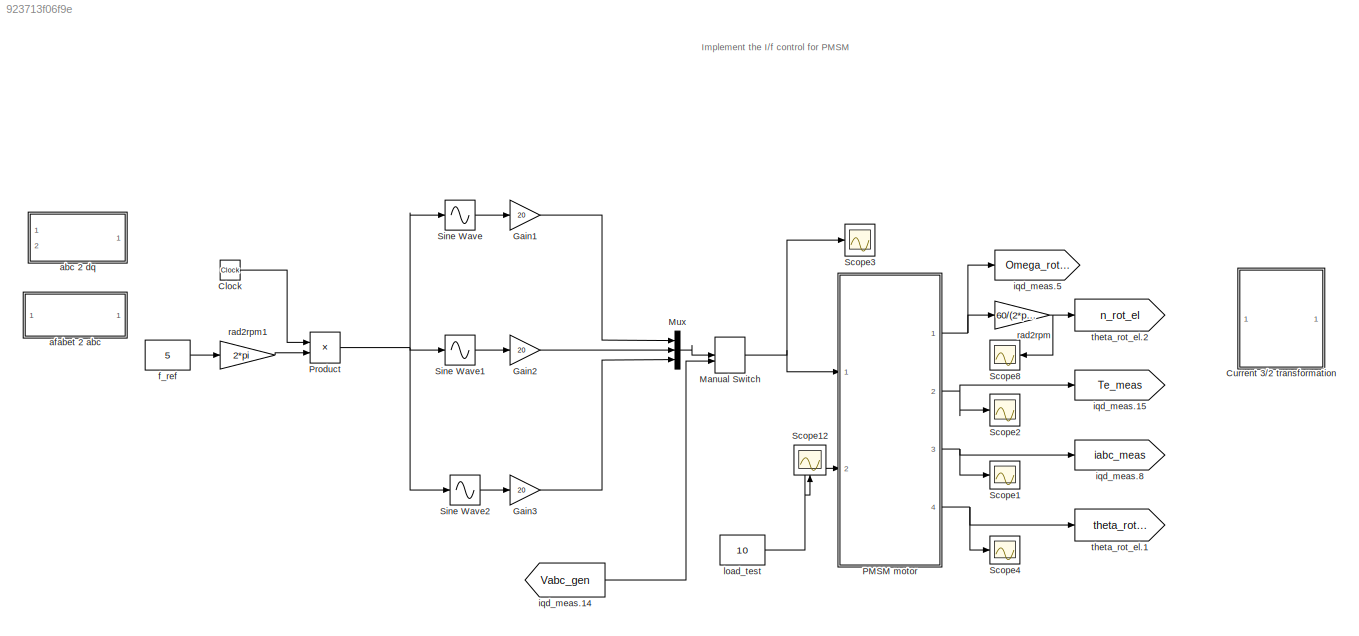
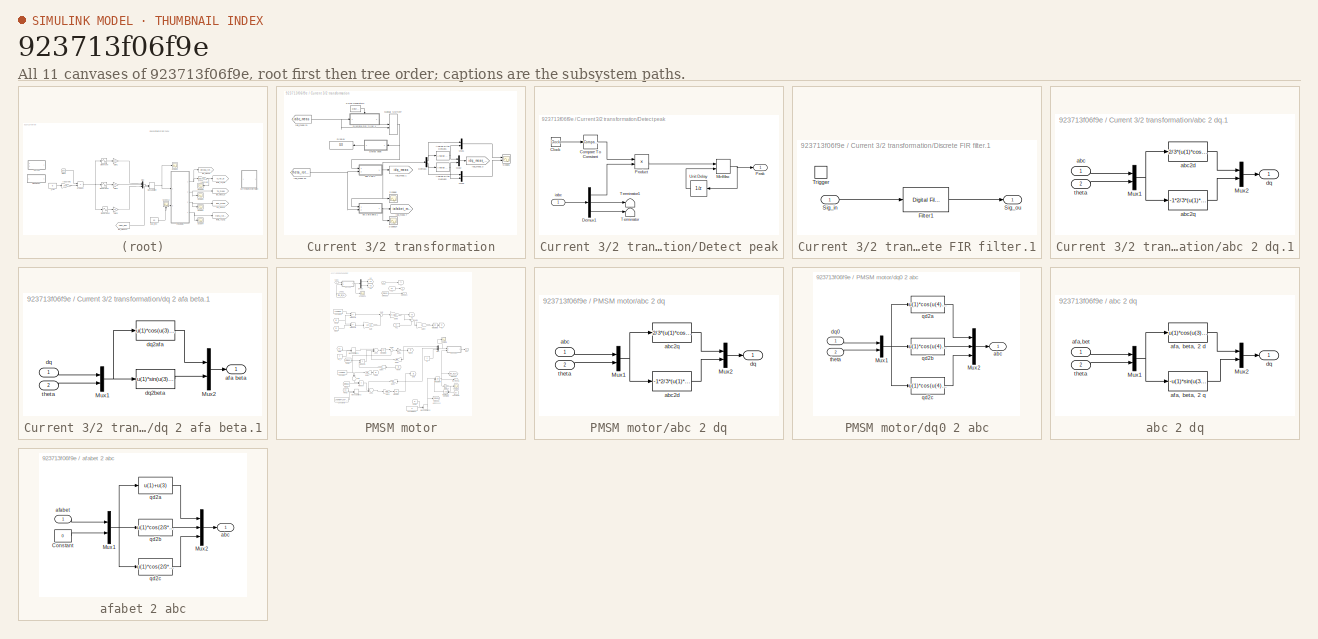
[diagram: thumbnail index - all 11 canvases of the model, root first then tree order]
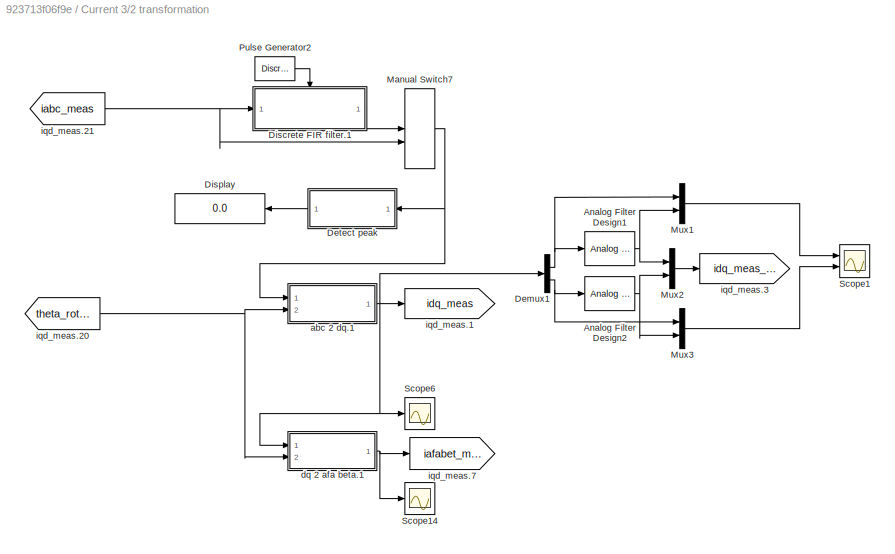
MODEL slx_923713f06f9e
KIND model
CONFIG InitFcn = Motor_parameters_Lsrpm7fw
BLOCK [Clock] Clock
BLOCK [SubSystem] Current 3//2 transformation
  FunctionWithSeparateData = off
  MaskHideContents = off
  MinAlgLoopOccurrences = off
  Opaque = off
  Ports = []
  PropExecContextOutsideSubsystem = off
  RTWSystemCode = Auto
  RequestExecContextInheritance = off
BLOCK [Reference] Current 3//2 transformation/Analog Filter Design1  REF=dsparch4/Analog
Filter Design
  N = 5
  Ports = [1, 1]
  Rp = 2
  Rs = 40
  SourceBlock = dsparch4/Analog\nFilter Design
  SourceType = Analog Filter Design
  Whi = 80
  Wlo = 2*pi*400
  filttype = Lowpass
  method = Butterworth
BLOCK [Reference] Current 3//2 transformation/Analog Filter Design2  REF=dsparch4/Analog
Filter Design
  N = 5
  Ports = [1, 1]
  Rp = 2
  Rs = 40
  SourceBlock = dsparch4/Analog\nFilter Design
  SourceType = Analog Filter Design
  Whi = 80
  Wlo = 2*pi*400
  filttype = Lowpass
  method = Butterworth
BLOCK [Demux] Current 3//2 transformation/Demux1
  DisplayOption = bar
  Outputs = 2
  Ports = [1, 2]
BLOCK [SubSystem] Current 3//2 transformation/Detect peak
  FunctionWithSeparateData = off
  MaskHideContents = off
  MinAlgLoopOccurrences = off
  Opaque = off
  Ports = [1, 1]
  PropExecContextOutsideSubsystem = off
  RTWSystemCode = Auto
  RequestExecContextInheritance = off
BLOCK [Clock] Current 3//2 transformation/Detect peak/Clock
BLOCK [Reference] Current 3//2 transformation/Detect peak/Compare To Constant  REF=simulink/Logic and Bit
Operations/Compare
To Constant
  OutDataTypeStr = uint8
  Ports = [1, 1]
  SourceBlock = simulink/Logic and Bit\nOperations/Compare\nTo Constant
  SourceType = Compare To Constant
  ZeroCross = off
  const = 9.5
  relop = >=
BLOCK [Demux] Current 3//2 transformation/Detect peak/Demux1
  DisplayOption = bar
  Outputs = 3
  Ports = [1, 3]
BLOCK [MinMax] Current 3//2 transformation/Detect peak/MinMax
  Function = max
  InputSameDT = off
  Inputs = 2
  Ports = [2, 1]
  SaturateOnIntegerOverflow = off
BLOCK [Outport] Current 3//2 transformation/Detect peak/Peak
  IconDisplay = Port number
BLOCK [Product] Current 3//2 transformation/Detect peak/Product
  InputSameDT = off
  OutDataTypeStr = Inherit: Inherit via internal rule
  Ports = [2, 1]
  SaturateOnIntegerOverflow = off
BLOCK [Terminator] Current 3//2 transformation/Detect peak/Terminator
BLOCK [Terminator] Current 3//2 transformation/Detect peak/Terminator1
BLOCK [UnitDelay] Current 3//2 transformation/Detect peak/Unit Delay
  SampleTime = 1/5e3
BLOCK [Inport] Current 3//2 transformation/Detect peak/iabc
  IconDisplay = Port number
BLOCK [SubSystem] Current 3//2 transformation/Discrete FIR filter.1
  FunctionWithSeparateData = off
  MaskHideContents = off
  MinAlgLoopOccurrences = off
  Opaque = off
  Ports = [1, 1, 0, 1]
  PropExecContextOutsideSubsystem = off
  RTWSystemCode = Auto
  RequestExecContextInheritance = off
BLOCK [Reference] Current 3//2 transformation/Discrete FIR filter.1/Filter1  REF=dsparch4/Digital Filter
  AllPoleFiltStruct = Direct form
  BiQuadCoeffs = [1 0.3 0.4 1 0.1 0.2]
  CoeffSource = Specify via dialog
  DenCoeffs = [1 0.1]
  FIRFiltStruct = Direct form
  FiltPerSampPopup = One filter per frame
  FilterSource = Specify via dialog
  IC = 0
  ICden = 0
  ICnum = 0
  IIRFiltStruct = Direct form II transposed
  InputProcessing = Inherited (this choice will be removed - see release notes)
  LatticeCoeffs = [0.2 0.4]
  LockScale = off
  NumCoeffs = [0.0129982054114534 -0.101337899103369 0.58834244300993 0.58834244300993 -0.101337899103369 0.0129982054114534]
  Ports = [1, 1]
  ScaleValues = 1
  SourceBlock = dsparch4/Digital Filter
  SourceType = Digital Filter
  Tag = BlockMethodSubSystem
  TypePopup = FIR (all zeros)
  UserDataPersistent = on
  accumFracLength = 30
  accumMode = Same as product output
  accumWordLength = 32
  additionalParams = off
  allowOverrides = on
  denIgnore = on
  dfiltObjectName = dfilt.dffir([1 2 1])
  firstCoeffFracLength = 15
  firstCoeffMode = Same word length as input
  firstCoeffWordLength = 16
  memoryFracLength = 15
  memoryMode = Same as accumulator
  memoryWordLength = 16
  multiplicandFracLength = 30
  multiplicandMode = Same as output
  multiplicandWordLength = 32
  outputFracLength = 15
  outputMode = Same as accumulator
  outputWordLength = 16
  overflowMode = off
  prodOutputFracLength = 30
  prodOutputMode = Same as input
  prodOutputWordLength = 32
  roundingMode = Floor
  scaleValueFracLength = 14
  secondCoeffFracLength = 15
  secondCoeffMode = Same as numerator
  secondCoeffWordLength = 16
  showAcc = off
  showCoeff = off
  showMem = off
  showMpy = off
  showOut = off
  stageIOMode = Same as input
  stageIOWordLength = 16
  stageInFracLength = 15
  stageOutFracLength = 15
  tapSumFracLength = 30
  tapSumMode = Same as input
  tapSumWordLength = 32
  thirdCoeffFracLength = 15
  thirdCoeffMode = Same as input
  thirdCoeffWordLength = 16
BLOCK [Inport] Current 3//2 transformation/Discrete FIR filter.1/Sig_in
  IconDisplay = Port number
BLOCK [Outport] Current 3//2 transformation/Discrete FIR filter.1/Sig_ou
  IconDisplay = Port number
BLOCK [TriggerPort] Current 3//2 transformation/Discrete FIR filter.1/Trigger
  Ports = []
  StatesWhenEnabling = held
BLOCK [Display] Current 3//2 transformation/Display
  Decimation = 1
  Ports = [1]
BLOCK [ManualSwitch] Current 3//2 transformation/Manual Switch7
  CurrentSetting = 0
BLOCK [Mux] Current 3//2 transformation/Mux1
  DisplayOption = bar
  Inputs = 2
  Ports = [2, 1]
BLOCK [Mux] Current 3//2 transformation/Mux2
  DisplayOption = bar
  Inputs = 2
  Ports = [2, 1]
BLOCK [Mux] Current 3//2 transformation/Mux3
  DisplayOption = bar
  Inputs = 2
  Ports = [2, 1]
BLOCK [DiscretePulseGenerator] Current 3//2 transformation/Pulse Generator2
  Period = 1/fs
  PhaseDelay = 1/fs/4*0
  Ports = [0, 1]
  PulseType = Time based
  PulseWidth = 50
BLOCK [Scope] Current 3//2 transformation/Scope1
  DataFormat = StructureWithTime
  Floating = off
  LimitDataPoints = off
  NumInputPorts = 2
  Ports = [2]
  SampleTime = 0
  SaveName = ScopeData40
  ShowLegends = off
  YMax = 5500~5
  YMin = -5500~-5
  ZoomMode = xonly
BLOCK [Scope] Current 3//2 transformation/Scope14
  DataFormat = StructureWithTime
  Floating = off
  LimitDataPoints = off
  NumInputPorts = 1
  Ports = [1]
  SampleTime = 0
  SaveName = ScopeData27
  ShowLegends = off
  YMax = 5500
  YMin = -5500
BLOCK [Scope] Current 3//2 transformation/Scope6
  DataFormat = StructureWithTime
  Floating = off
  LimitDataPoints = off
  NumInputPorts = 1
  Ports = [1]
  SampleTime = 0
  SaveName = ScopeData25
  ShowLegends = off
  ZoomMode = xonly
BLOCK [SubSystem] Current 3//2 transformation/abc 2 dq.1
  FunctionWithSeparateData = off
  MaskHideContents = off
  MinAlgLoopOccurrences = off
  Opaque = off
  Ports = [2, 1]
  PropExecContextOutsideSubsystem = off
  RTWSystemCode = Auto
  RequestExecContextInheritance = off
BLOCK [Mux] Current 3//2 transformation/abc 2 dq.1/Mux1
  DisplayOption = bar
  Inputs = 2
  Ports = [2, 1]
BLOCK [Mux] Current 3//2 transformation/abc 2 dq.1/Mux2
  DisplayOption = bar
  Inputs = 2
  Ports = [2, 1]
BLOCK [Inport] Current 3//2 transformation/abc 2 dq.1/abc
  IconDisplay = Port number
BLOCK [Fcn] Current 3//2 transformation/abc 2 dq.1/abc2d
  Expr = 2/3*(u(1)*cos(u(4))+u(2)*cos(u(4)-2*pi/3)+u(3)*cos(u(4)-4*pi/3))
BLOCK [Fcn] Current 3//2 transformation/abc 2 dq.1/abc2q
  Expr = -1*2/3*(u(1)*sin(u(4))+u(2)*sin(u(4)-2*pi/3)+u(3)*sin(u(4)-4*pi/3))
BLOCK [Outport] Current 3//2 transformation/abc 2 dq.1/dq
  IconDisplay = Port number
BLOCK [Inport] Current 3//2 transformation/abc 2 dq.1/theta
  IconDisplay = Port number
  Port = 2
BLOCK [SubSystem] Current 3//2 transformation/dq 2 afa beta.1
  FunctionWithSeparateData = off
  MaskHideContents = off
  MinAlgLoopOccurrences = off
  Opaque = off
  Ports = [2, 1]
  PropExecContextOutsideSubsystem = off
  RTWSystemCode = Auto
  RequestExecContextInheritance = off
BLOCK [Mux] Current 3//2 transformation/dq 2 afa beta.1/Mux1
  DisplayOption = bar
  Inputs = 2
  Ports = [2, 1]
BLOCK [Mux] Current 3//2 transformation/dq 2 afa beta.1/Mux2
  DisplayOption = bar
  Inputs = 2
  Ports = [2, 1]
BLOCK [Outport] Current 3//2 transformation/dq 2 afa beta.1/afa beta
  IconDisplay = Port number
BLOCK [Inport] Current 3//2 transformation/dq 2 afa beta.1/dq
  IconDisplay = Port number
BLOCK [Fcn] Current 3//2 transformation/dq 2 afa beta.1/dq2afa
  Expr = u(1)*cos(u(3))-u(2)*sin(u(3))
BLOCK [Fcn] Current 3//2 transformation/dq 2 afa beta.1/dq2beta
  Expr = u(1)*sin(u(3))+u(2)*cos(u(3))
BLOCK [Inport] Current 3//2 transformation/dq 2 afa beta.1/theta
  IconDisplay = Port number
  Port = 2
BLOCK [Goto] Current 3//2 transformation/iqd_meas.1
  GotoTag = idq_meas
  TagVisibility = global
BLOCK [From] Current 3//2 transformation/iqd_meas.20
  CloseFcn = tagdialog Close
  GotoTag = theta_rot_el
  TagVisibility = global
BLOCK [From] Current 3//2 transformation/iqd_meas.21
  CloseFcn = tagdialog Close
  GotoTag = iabc_meas
  TagVisibility = global
BLOCK [Goto] Current 3//2 transformation/iqd_meas.3
  GotoTag = idq_meas_fil
  TagVisibility = global
BLOCK [Goto] Current 3//2 transformation/iqd_meas.7
  GotoTag = iafabet_meas
  TagVisibility = global
BLOCK [Gain] Gain1
  Gain = 20
  OutDataTypeStr = Inherit: Inherit via internal rule
  ParamDataTypeStr = Inherit: Inherit via internal rule
  SaturateOnIntegerOverflow = off
BLOCK [Gain] Gain2
  Gain = 20
  OutDataTypeStr = Inherit: Inherit via internal rule
  ParamDataTypeStr = Inherit: Inherit via internal rule
  SaturateOnIntegerOverflow = off
BLOCK [Gain] Gain3
  Gain = 20
  OutDataTypeStr = Inherit: Inherit via internal rule
  ParamDataTypeStr = Inherit: Inherit via internal rule
  SaturateOnIntegerOverflow = off
BLOCK [ManualSwitch] Manual Switch
BLOCK [Mux] Mux
  DisplayOption = bar
  Inputs = 3
  Ports = [3, 1]
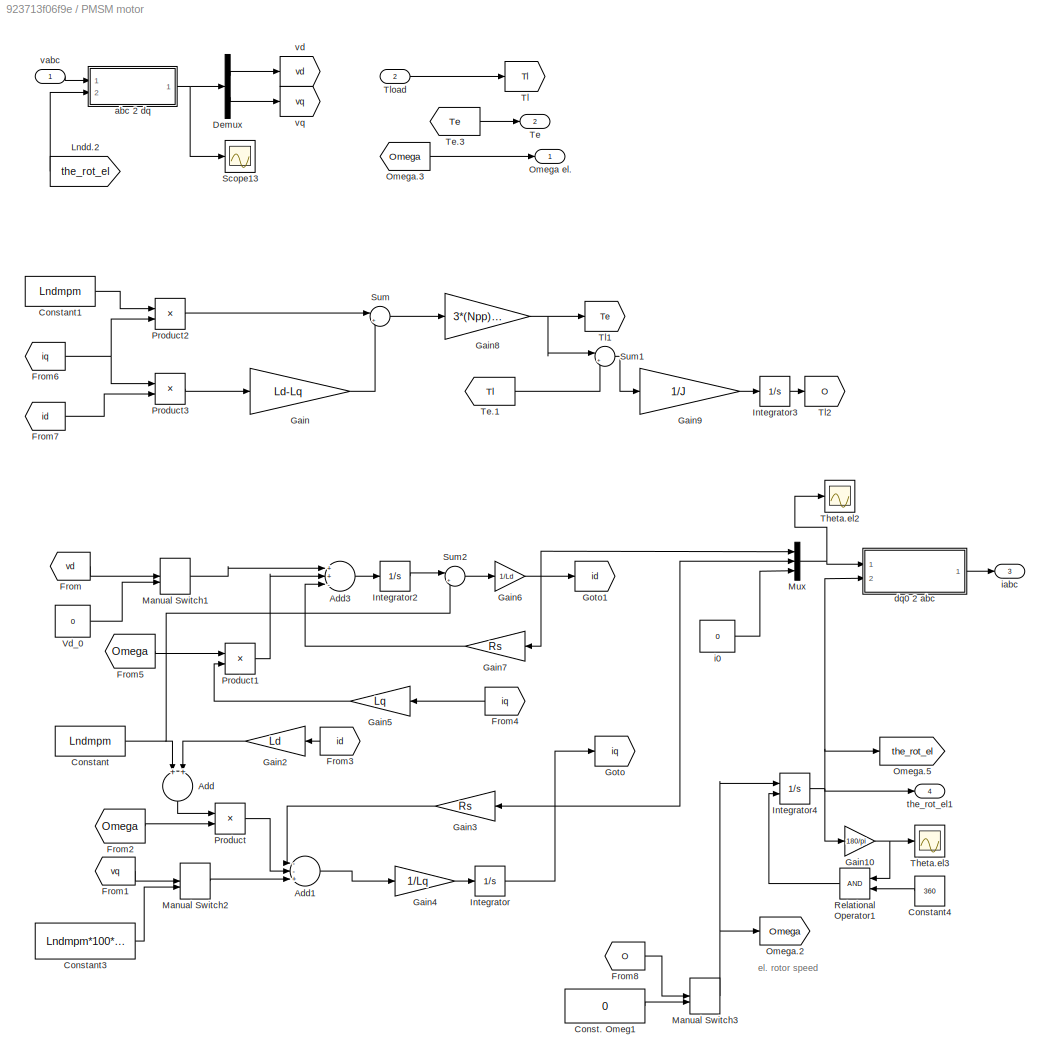
BLOCK [SubSystem] PMSM motor
  FunctionWithSeparateData = off
  MaskHideContents = off
  MinAlgLoopOccurrences = off
  Opaque = off
  Ports = [2, 4]
  PropExecContextOutsideSubsystem = off
  RTWSystemCode = Auto
  RequestExecContextInheritance = off
BLOCK [Sum] PMSM motor/Add
  InputSameDT = off
  OutDataTypeStr = Inherit: Inherit via internal rule
  Ports = [2, 1]
  SaturateOnIntegerOverflow = off
BLOCK [Sum] PMSM motor/Add1
  InputSameDT = off
  Inputs = --+
  OutDataTypeStr = Inherit: Inherit via internal rule
  Ports = [3, 1]
  SaturateOnIntegerOverflow = off
BLOCK [Sum] PMSM motor/Add3
  InputSameDT = off
  Inputs = ++-
  OutDataTypeStr = Inherit: Inherit via internal rule
  Ports = [3, 1]
  SaturateOnIntegerOverflow = off
BLOCK [Constant] PMSM motor/Const. Omeg1
  Value = 0
BLOCK [Constant] PMSM motor/Constant
  Value = Lndmpm
BLOCK [Constant] PMSM motor/Constant1
  Value = Lndmpm
BLOCK [Constant] PMSM motor/Constant3
  Value = Lndmpm*100*pi
BLOCK [Constant] PMSM motor/Constant4
  Value = 360
BLOCK [Demux] PMSM motor/Demux
  DisplayOption = bar
  Outputs = 2
  Ports = [1, 2]
BLOCK [From] PMSM motor/From
  GotoTag = vd
BLOCK [From] PMSM motor/From1
  GotoTag = vq
BLOCK [From] PMSM motor/From2
  GotoTag = Omega
BLOCK [From] PMSM motor/From3
  GotoTag = id
BLOCK [From] PMSM motor/From4
  GotoTag = iq
BLOCK [From] PMSM motor/From5
  GotoTag = Omega
BLOCK [From] PMSM motor/From6
  GotoTag = iq
BLOCK [From] PMSM motor/From7
  GotoTag = id
BLOCK [From] PMSM motor/From8
  GotoTag = O
BLOCK [Gain] PMSM motor/Gain
  Gain = Ld-Lq
  OutDataTypeStr = Inherit: Inherit via internal rule
  ParamDataTypeStr = Inherit: Inherit via internal rule
  SaturateOnIntegerOverflow = off
BLOCK [Gain] PMSM motor/Gain10
  Gain = 180/pi
  OutDataTypeStr = Inherit: Inherit via internal rule
  ParamDataTypeStr = Inherit: Inherit via internal rule
  SaturateOnIntegerOverflow = off
BLOCK [Gain] PMSM motor/Gain2
  Gain = Ld
  OutDataTypeStr = Inherit: Inherit via internal rule
  ParamDataTypeStr = Inherit: Inherit via internal rule
  SaturateOnIntegerOverflow = off
BLOCK [Gain] PMSM motor/Gain3
  Gain = Rs
  OutDataTypeStr = Inherit: Inherit via internal rule
  ParamDataTypeStr = Inherit: Inherit via internal rule
  SaturateOnIntegerOverflow = off
BLOCK [Gain] PMSM motor/Gain4
  Gain = 1/Lq
  OutDataTypeStr = Inherit: Inherit via internal rule
  ParamDataTypeStr = Inherit: Inherit via internal rule
  SaturateOnIntegerOverflow = off
BLOCK [Gain] PMSM motor/Gain5
  Gain = Lq
  OutDataTypeStr = Inherit: Inherit via internal rule
  ParamDataTypeStr = Inherit: Inherit via internal rule
  SaturateOnIntegerOverflow = off
BLOCK [Gain] PMSM motor/Gain6
  Gain = 1/Ld
  OutDataTypeStr = Inherit: Inherit via internal rule
  ParamDataTypeStr = Inherit: Inherit via internal rule
  SaturateOnIntegerOverflow = off
BLOCK [Gain] PMSM motor/Gain7
  Gain = Rs
  OutDataTypeStr = Inherit: Inherit via internal rule
  ParamDataTypeStr = Inherit: Inherit via internal rule
  SaturateOnIntegerOverflow = off
BLOCK [Gain] PMSM motor/Gain8
  Gain = 3*(Npp)/2
  OutDataTypeStr = Inherit: Inherit via internal rule
  ParamDataTypeStr = Inherit: Inherit via internal rule
  SaturateOnIntegerOverflow = off
BLOCK [Gain] PMSM motor/Gain9
  Gain = 1/J
  OutDataTypeStr = Inherit: Inherit via internal rule
  ParamDataTypeStr = Inherit: Inherit via internal rule
  SaturateOnIntegerOverflow = off
BLOCK [Goto] PMSM motor/Goto
  GotoTag = iq
BLOCK [Goto] PMSM motor/Goto1
  GotoTag = id
BLOCK [Integrator] PMSM motor/Integrator
  Ports = [1, 1]
BLOCK [Integrator] PMSM motor/Integrator2
  Ports = [1, 1]
BLOCK [Integrator] PMSM motor/Integrator3
  Ports = [1, 1]
BLOCK [Integrator] PMSM motor/Integrator4
  ExternalReset = rising
  Ports = [2, 1]
BLOCK [From] PMSM motor/Lndd.2
  CloseFcn = tagdialog Close
  GotoTag = the_rot_el
BLOCK [ManualSwitch] PMSM motor/Manual Switch1
BLOCK [ManualSwitch] PMSM motor/Manual Switch2
BLOCK [ManualSwitch] PMSM motor/Manual Switch3
BLOCK [Mux] PMSM motor/Mux
  DisplayOption = bar
  Inputs = 3
  Ports = [3, 1]
BLOCK [Outport] PMSM motor/Omega el.
  IconDisplay = Port number
BLOCK [Goto] PMSM motor/Omega.2
  GotoTag = Omega
BLOCK [From] PMSM motor/Omega.3
  CloseFcn = tagdialog Close
  GotoTag = Omega
BLOCK [Goto] PMSM motor/Omega.5
  GotoTag = the_rot_el
BLOCK [Product] PMSM motor/Product
  InputSameDT = off
  OutDataTypeStr = Inherit: Inherit via internal rule
  Ports = [2, 1]
  RndMeth = Floor
  SaturateOnIntegerOverflow = off
BLOCK [Product] PMSM motor/Product1
  InputSameDT = off
  OutDataTypeStr = Inherit: Inherit via internal rule
  Ports = [2, 1]
  RndMeth = Floor
  SaturateOnIntegerOverflow = off
BLOCK [Product] PMSM motor/Product2
  InputSameDT = off
  OutDataTypeStr = Inherit: Inherit via internal rule
  Ports = [2, 1]
  RndMeth = Floor
  SaturateOnIntegerOverflow = off
BLOCK [Product] PMSM motor/Product3
  InputSameDT = off
  OutDataTypeStr = Inherit: Inherit via internal rule
  Ports = [2, 1]
  RndMeth = Floor
  SaturateOnIntegerOverflow = off
BLOCK [RelationalOperator] PMSM motor/Relational Operator1
  InputSameDT = off
  OutDataTypeStr = boolean
  Ports = [2, 1]
BLOCK [Scope] PMSM motor/Scope13
  DataFormat = StructureWithTime
  Floating = off
  LimitDataPoints = off
  NumInputPorts = 1
  Ports = [1]
  SampleTime = 0
  SaveName = ScopeData24
  ShowLegends = off
  YMax = 70
  YMin = -70
  ZoomMode = yonly
BLOCK [Sum] PMSM motor/Sum
  IconShape = round
  InputSameDT = off
  Inputs = |++
  OutDataTypeStr = Inherit: Inherit via internal rule
  Ports = [2, 1]
  SaturateOnIntegerOverflow = off
BLOCK [Sum] PMSM motor/Sum1
  IconShape = round
  InputSameDT = off
  Inputs = |+-
  OutDataTypeStr = Inherit: Inherit via internal rule
  Ports = [2, 1]
  SaturateOnIntegerOverflow = off
BLOCK [Sum] PMSM motor/Sum2
  IconShape = round
  InputSameDT = off
  Inputs = |+-
  OutDataTypeStr = Inherit: Inherit via internal rule
  Ports = [2, 1]
  SaturateOnIntegerOverflow = off
BLOCK [Outport] PMSM motor/Te
  IconDisplay = Port number
  Port = 2
BLOCK [From] PMSM motor/Te.1
  CloseFcn = tagdialog Close
  GotoTag = Tl
BLOCK [From] PMSM motor/Te.3
  CloseFcn = tagdialog Close
  GotoTag = Te
BLOCK [Scope] PMSM motor/Theta.el2
  DataFormat = StructureWithTime
  Floating = off
  LimitDataPoints = off
  NumInputPorts = 1
  Ports = [1]
  SampleTime = 0
  SaveName = ScopeData10
  ShowLegends = off
  TimeRange = 3.5
  YMax = 0
  YMin = -2e-06
  ZoomMode = yonly
BLOCK [Scope] PMSM motor/Theta.el3
  DataFormat = StructureWithTime
  Floating = off
  NumInputPorts = 1
  Ports = [1]
  SampleTime = 0
  SaveName = ScopeData3
  ShowLegends = off
  YMax = 225
  YMin = -225
BLOCK [Goto] PMSM motor/Tl
  GotoTag = Tl
BLOCK [Goto] PMSM motor/Tl1
  GotoTag = Te
BLOCK [Goto] PMSM motor/Tl2
  GotoTag = O
BLOCK [Inport] PMSM motor/Tload
  IconDisplay = Port number
  Port = 2
BLOCK [Constant] PMSM motor/Vd_0
  Value = 0
BLOCK [SubSystem] PMSM motor/abc 2 dq
  FunctionWithSeparateData = off
  MaskHideContents = off
  MinAlgLoopOccurrences = off
  Opaque = off
  Ports = [2, 1]
  PropExecContextOutsideSubsystem = off
  RTWSystemCode = Auto
  RequestExecContextInheritance = off
BLOCK [Mux] PMSM motor/abc 2 dq/Mux1
  DisplayOption = bar
  Inputs = 2
  Ports = [2, 1]
BLOCK [Mux] PMSM motor/abc 2 dq/Mux2
  DisplayOption = bar
  Inputs = 2
  Ports = [2, 1]
BLOCK [Inport] PMSM motor/abc 2 dq/abc
  IconDisplay = Port number
BLOCK [Fcn] PMSM motor/abc 2 dq/abc2d
  Expr = -1*2/3*(u(1)*sin(u(4))+u(2)*sin(u(4)-2*pi/3)+u(3)*sin(u(4)-4*pi/3))
BLOCK [Fcn] PMSM motor/abc 2 dq/abc2q
  Expr = 2/3*(u(1)*cos(u(4))+u(2)*cos(u(4)-2*pi/3)+u(3)*cos(u(4)-4*pi/3))
BLOCK [Outport] PMSM motor/abc 2 dq/dq
  IconDisplay = Port number
BLOCK [Inport] PMSM motor/abc 2 dq/theta
  IconDisplay = Port number
  Port = 2
BLOCK [SubSystem] PMSM motor/dq0 2 abc
  FunctionWithSeparateData = off
  MaskHideContents = off
  MinAlgLoopOccurrences = off
  Opaque = off
  Ports = [2, 1]
  PropExecContextOutsideSubsystem = off
  RTWSystemCode = Auto
  RequestExecContextInheritance = off
BLOCK [Mux] PMSM motor/dq0 2 abc/Mux1
  DisplayOption = bar
  Inputs = 2
  Ports = [2, 1]
BLOCK [Mux] PMSM motor/dq0 2 abc/Mux2
  DisplayOption = bar
  Inputs = 3
  Ports = [3, 1]
BLOCK [Outport] PMSM motor/dq0 2 abc/abc
  IconDisplay = Port number
BLOCK [Inport] PMSM motor/dq0 2 abc/dq0
  IconDisplay = Port number
BLOCK [Fcn] PMSM motor/dq0 2 abc/qd2a
  Expr = u(1)*cos(u(4))-u(2)*sin(u(4))+u(3)
BLOCK [Fcn] PMSM motor/dq0 2 abc/qd2b
  Expr = u(1)*cos(u(4)-2/3*pi)-u(2)*sin(u(4)-2/3*pi)+u(3)
BLOCK [Fcn] PMSM motor/dq0 2 abc/qd2c
  Expr = u(1)*cos(u(4)+2/3*pi)-u(2)*sin(u(4)+2/3*pi)+u(3)
BLOCK [Inport] PMSM motor/dq0 2 abc/theta
  IconDisplay = Port number
  Port = 2
BLOCK [Constant] PMSM motor/i0
  Value = 0
BLOCK [Outport] PMSM motor/iabc
  IconDisplay = Port number
  Port = 3
BLOCK [Outport] PMSM motor/the_rot_el1
  IconDisplay = Port number
  Port = 4
BLOCK [Inport] PMSM motor/vabc
  IconDisplay = Port number
BLOCK [Goto] PMSM motor/vd
  GotoTag = vd
BLOCK [Goto] PMSM motor/vq
  GotoTag = vq
BLOCK [Product] Product
  InputSameDT = off
  OutDataTypeStr = Inherit: Inherit via internal rule
  Ports = [2, 1]
  RndMeth = Floor
  SaturateOnIntegerOverflow = off
BLOCK [Scope] Scope1
  DataFormat = StructureWithTime
  Floating = off
  LimitDataPoints = off
  NumInputPorts = 1
  Ports = [1]
  SampleTime = 0
  SaveName = ScopeData22
  ShowLegends = off
  TimeRange = 0.09507640067911714
  YMax = 15
  YMin = -15
  ZoomMode = yonly
BLOCK [Scope] Scope12
  DataFormat = StructureWithTime
  Floating = off
  LimitDataPoints = off
  NumInputPorts = 1
  Ports = [1]
  SampleTime = 0
  SaveName = ScopeData16
  ShowLegends = off
  YMax = 1.2
  YMin = 0.1
  ZoomMode = yonly
BLOCK [Scope] Scope2
  DataFormat = StructureWithTime
  Floating = off
  LimitDataPoints = off
  NumInputPorts = 1
  Ports = [1]
  SampleTime = 0
  SaveName = ScopeData4
  ShowLegends = off
  TimeRange = 2
  YMax = 10.7
  YMin = 9.3
  ZoomMode = yonly
BLOCK [Scope] Scope3
  DataFormat = StructureWithTime
  Floating = off
  LimitDataPoints = off
  NumInputPorts = 1
  Ports = [1]
  SampleTime = 0
  SaveName = ScopeData2
  ShowLegends = off
  TimeRange = 2
  YMax = 110000
  YMin = -50000
  ZoomMode = xonly
BLOCK [Scope] Scope4
  DataFormat = StructureWithTime
  Floating = off
  LimitDataPoints = off
  NumInputPorts = 1
  Ports = [1]
  SampleTime = 0
  SaveName = ScopeData1
  ShowLegends = off
  TimeRange = 0.09507640067911714
  YMax = 6.25
  YMin = 3
BLOCK [Scope] Scope8
  DataFormat = StructureWithTime
  Floating = off
  LimitDataPoints = off
  NumInputPorts = 1
  Ports = [1]
  SampleTime = 0
  SaveName = ScopeData23
  ShowLegends = off
  TimeRange = 0.09507640067911714
  YMax = 315
  YMin = 285
  ZoomMode = yonly
BLOCK [Sin] Sine Wave
  Ports = [1, 1]
  SampleTime = 0
  TimeSource = Use external signal
BLOCK [Sin] Sine Wave1
  Phase = -2*pi/3
  Ports = [1, 1]
  SampleTime = 0
  TimeSource = Use external signal
BLOCK [Sin] Sine Wave2
  Phase = 2*pi/3
  Ports = [1, 1]
  SampleTime = 0
  TimeSource = Use external signal
BLOCK [SubSystem] abc 2 dq
  Commented = on
  FunctionWithSeparateData = off
  MaskHideContents = off
  MinAlgLoopOccurrences = off
  Opaque = off
  Ports = [2, 1]
  PropExecContextOutsideSubsystem = off
  RTWSystemCode = Auto
  RequestExecContextInheritance = off
BLOCK [Mux] abc 2 dq/Mux1
  DisplayOption = bar
  Inputs = 2
  Ports = [2, 1]
BLOCK [Mux] abc 2 dq/Mux2
  DisplayOption = bar
  Inputs = 2
  Ports = [2, 1]
BLOCK [Fcn] abc 2 dq/afa, beta, 2 d
  Expr = u(1)*cos(u(3))+u(2)*sin(u(3))
BLOCK [Fcn] abc 2 dq/afa, beta, 2 q
  Expr = -u(1)*sin(u(3))+u(2)*cos(u(3))
BLOCK [Inport] abc 2 dq/afa,bet
  IconDisplay = Port number
BLOCK [Outport] abc 2 dq/dq
  IconDisplay = Port number
BLOCK [Inport] abc 2 dq/theta
  IconDisplay = Port number
  Port = 2
BLOCK [SubSystem] afabet 2 abc
  Commented = on
  FunctionWithSeparateData = off
  MaskHideContents = off
  MinAlgLoopOccurrences = off
  Opaque = off
  Ports = [1, 1]
  PropExecContextOutsideSubsystem = off
  RTWSystemCode = Auto
  RequestExecContextInheritance = off
BLOCK [Constant] afabet 2 abc/Constant
  Value = 0
BLOCK [Mux] afabet 2 abc/Mux1
  DisplayOption = bar
  Inputs = 2
  Ports = [2, 1]
BLOCK [Mux] afabet 2 abc/Mux2
  DisplayOption = bar
  Inputs = 3
  Ports = [3, 1]
BLOCK [Outport] afabet 2 abc/abc
  IconDisplay = Port number
BLOCK [Inport] afabet 2 abc/afabet
  IconDisplay = Port number
BLOCK [Fcn] afabet 2 abc/qd2a
  Expr = u(1)+u(3)
BLOCK [Fcn] afabet 2 abc/qd2b
  Expr = u(1)*cos(2/3*pi)+u(2)*sin(2/3*pi)+u(3)
BLOCK [Fcn] afabet 2 abc/qd2c
  Expr = u(1)*cos(2/3*pi)-u(2)*sin(2/3*pi)+u(3)
BLOCK [Constant] f_ref
  Value = 5
BLOCK [From] iqd_meas.14
  CloseFcn = tagdialog Close
  GotoTag = Vabc_gen
BLOCK [Goto] iqd_meas.15
  GotoTag = Te_meas
BLOCK [Goto] iqd_meas.5
  GotoTag = Omega_rot_el
BLOCK [Goto] iqd_meas.8
  GotoTag = iabc_meas
  TagVisibility = global
BLOCK [Constant] load_test
  Value = 10
BLOCK [Gain] rad2rpm
  Gain = 60/(2*pi)
  OutDataTypeStr = Inherit: Inherit via internal rule
  ParamDataTypeStr = Inherit: Inherit via internal rule
  SaturateOnIntegerOverflow = off
BLOCK [Gain] rad2rpm1
  Gain = 2*pi
  OutDataTypeStr = Inherit: Inherit via internal rule
  ParamDataTypeStr = Inherit: Inherit via internal rule
  SaturateOnIntegerOverflow = off
BLOCK [Goto] theta_rot_el.1
  GotoTag = theta_rot_el
  TagVisibility = global
BLOCK [Goto] theta_rot_el.2
  GotoTag = n_rot_el
ANNOTATION (root): Implement the I/f control for PMSM
ANNOTATION PMSM motor: el. rotor speed
LINE Clock:1 -> Product:1
NET Current 3//2 transformation/Analog Filter Design1:1 -> Current 3//2 transformation/Mux1:2, Current 3//2 transformation/Mux2:1
NET Current 3//2 transformation/Analog Filter Design2:1 -> Current 3//2 transformation/Mux2:2, Current 3//2 transformation/Mux3:2
NET Current 3//2 transformation/Demux1:1 -> Current 3//2 transformation/Analog Filter Design1:1, Current 3//2 transformation/Mux1:1
NET Current 3//2 transformation/Demux1:2 -> Current 3//2 transformation/Analog Filter Design2:1, Current 3//2 transformation/Mux3:1
LINE Current 3//2 transformation/Detect peak/Clock:1 -> Current 3//2 transformation/Detect peak/Compare To Constant:1
LINE Current 3//2 transformation/Detect peak/Compare To Constant:1 -> Current 3//2 transformation/Detect peak/Product:1
LINE Current 3//2 transformation/Detect peak/Demux1:1 -> Current 3//2 transformation/Detect peak/Product:2
LINE Current 3//2 transformation/Detect peak/Demux1:2 -> Current 3//2 transformation/Detect peak/Terminator1:1
LINE Current 3//2 transformation/Detect peak/Demux1:3 -> Current 3//2 transformation/Detect peak/Terminator:1
NET Current 3//2 transformation/Detect peak/MinMax:1 -> Current 3//2 transformation/Detect peak/Peak:1, Current 3//2 transformation/Detect peak/Unit Delay:1
LINE Current 3//2 transformation/Detect peak/Product:1 -> Current 3//2 transformation/Detect peak/MinMax:1
LINE Current 3//2 transformation/Detect peak/Unit Delay:1 -> Current 3//2 transformation/Detect peak/MinMax:2
LINE Current 3//2 transformation/Detect peak/iabc:1 -> Current 3//2 transformation/Detect peak/Demux1:1
LINE Current 3//2 transformation/Detect peak:1 -> Current 3//2 transformation/Display:1
LINE Current 3//2 transformation/Discrete FIR filter.1/Filter1:1 -> Current 3//2 transformation/Discrete FIR filter.1/Sig_ou:1
LINE Current 3//2 transformation/Discrete FIR filter.1/Sig_in:1 -> Current 3//2 transformation/Discrete FIR filter.1/Filter1:1
LINE Current 3//2 transformation/Discrete FIR filter.1:1 -> Current 3//2 transformation/Manual Switch7:1
NET Current 3//2 transformation/Manual Switch7:1 -> Current 3//2 transformation/Detect peak:1, Current 3//2 transformation/abc 2 dq.1:1
LINE Current 3//2 transformation/Mux1:1 -> Current 3//2 transformation/Scope1:1
LINE Current 3//2 transformation/Mux2:1 -> Current 3//2 transformation/iqd_meas.3:1
LINE Current 3//2 transformation/Mux3:1 -> Current 3//2 transformation/Scope1:2
LINE Current 3//2 transformation/Pulse Generator2:1 -> Current 3//2 transformation/Discrete FIR filter.1:trigger
NET Current 3//2 transformation/abc 2 dq.1/Mux1:1 -> Current 3//2 transformation/abc 2 dq.1/abc2d:1, Current 3//2 transformation/abc 2 dq.1/abc2q:1
LINE Current 3//2 transformation/abc 2 dq.1/Mux2:1 -> Current 3//2 transformation/abc 2 dq.1/dq:1
LINE Current 3//2 transformation/abc 2 dq.1/abc2d:1 -> Current 3//2 transformation/abc 2 dq.1/Mux2:1
LINE Current 3//2 transformation/abc 2 dq.1/abc2q:1 -> Current 3//2 transformation/abc 2 dq.1/Mux2:2
LINE Current 3//2 transformation/abc 2 dq.1/abc:1 -> Current 3//2 transformation/abc 2 dq.1/Mux1:1
LINE Current 3//2 transformation/abc 2 dq.1/theta:1 -> Current 3//2 transformation/abc 2 dq.1/Mux1:2
NET Current 3//2 transformation/abc 2 dq.1:1 -> Current 3//2 transformation/Demux1:1, Current 3//2 transformation/Scope6:1, Current 3//2 transformation/dq 2 afa beta.1:1, Current 3//2 transformation/iqd_meas.1:1
NET Current 3//2 transformation/dq 2 afa beta.1/Mux1:1 -> Current 3//2 transformation/dq 2 afa beta.1/dq2afa:1, Current 3//2 transformation/dq 2 afa beta.1/dq2beta:1
LINE Current 3//2 transformation/dq 2 afa beta.1/Mux2:1 -> Current 3//2 transformation/dq 2 afa beta.1/afa beta:1
LINE Current 3//2 transformation/dq 2 afa beta.1/dq2afa:1 -> Current 3//2 transformation/dq 2 afa beta.1/Mux2:1
LINE Current 3//2 transformation/dq 2 afa beta.1/dq2beta:1 -> Current 3//2 transformation/dq 2 afa beta.1/Mux2:2
LINE Current 3//2 transformation/dq 2 afa beta.1/dq:1 -> Current 3//2 transformation/dq 2 afa beta.1/Mux1:1
LINE Current 3//2 transformation/dq 2 afa beta.1/theta:1 -> Current 3//2 transformation/dq 2 afa beta.1/Mux1:2
NET Current 3//2 transformation/dq 2 afa beta.1:1 -> Current 3//2 transformation/Scope14:1, Current 3//2 transformation/iqd_meas.7:1
NET Current 3//2 transformation/iqd_meas.20:1 -> Current 3//2 transformation/abc 2 dq.1:2, Current 3//2 transformation/dq 2 afa beta.1:2
NET Current 3//2 transformation/iqd_meas.21:1 -> Current 3//2 transformation/Discrete FIR filter.1:1, Current 3//2 transformation/Manual Switch7:2
LINE Gain1:1 -> Mux:1
LINE Gain2:1 -> Mux:2
LINE Gain3:1 -> Mux:3
NET Manual Switch:1 -> PMSM motor:1, Scope3:1
LINE Mux:1 -> Manual Switch:1
LINE PMSM motor/Add1:1 -> PMSM motor/Gain4:1
LINE PMSM motor/Add3:1 -> PMSM motor/Integrator2:1
LINE PMSM motor/Add:1 -> PMSM motor/Product:1
LINE PMSM motor/Const. Omeg1:1 -> PMSM motor/Manual Switch3:2
LINE PMSM motor/Constant1:1 -> PMSM motor/Product2:1
LINE PMSM motor/Constant3:1 -> PMSM motor/Manual Switch2:2
LINE PMSM motor/Constant4:1 -> PMSM motor/Relational Operator1:2
NET PMSM motor/Constant:1 -> PMSM motor/Add:1, PMSM motor/Sum2:2
LINE PMSM motor/Demux:1 -> PMSM motor/vd:1
LINE PMSM motor/Demux:2 -> PMSM motor/vq:1
LINE PMSM motor/From1:1 -> PMSM motor/Manual Switch2:1
LINE PMSM motor/From2:1 -> PMSM motor/Product:2
LINE PMSM motor/From3:1 -> PMSM motor/Gain2:1
LINE PMSM motor/From4:1 -> PMSM motor/Gain5:1
LINE PMSM motor/From5:1 -> PMSM motor/Product1:1
NET PMSM motor/From6:1 -> PMSM motor/Product2:2, PMSM motor/Product3:1
LINE PMSM motor/From7:1 -> PMSM motor/Product3:2
LINE PMSM motor/From8:1 -> PMSM motor/Manual Switch3:1
LINE PMSM motor/From:1 -> PMSM motor/Manual Switch1:1
NET PMSM motor/Gain10:1 -> PMSM motor/Relational Operator1:1, PMSM motor/Theta.el3:1
LINE PMSM motor/Gain2:1 -> PMSM motor/Add:2
LINE PMSM motor/Gain3:1 -> PMSM motor/Add1:1
LINE PMSM motor/Gain4:1 -> PMSM motor/Integrator:1
LINE PMSM motor/Gain5:1 -> PMSM motor/Product1:2
NET PMSM motor/Gain6:1 -> PMSM motor/Gain7:1, PMSM motor/Goto1:1, PMSM motor/Mux:1
LINE PMSM motor/Gain7:1 -> PMSM motor/Add3:3
NET PMSM motor/Gain8:1 -> PMSM motor/Sum1:1, PMSM motor/Tl1:1
LINE PMSM motor/Gain9:1 -> PMSM motor/Integrator3:1
LINE PMSM motor/Gain:1 -> PMSM motor/Sum:2
LINE PMSM motor/Integrator2:1 -> PMSM motor/Sum2:1
LINE PMSM motor/Integrator3:1 -> PMSM motor/Tl2:1
NET PMSM motor/Integrator4:1 -> PMSM motor/Gain10:1, PMSM motor/Omega.5:1, PMSM motor/dq0 2 abc:2, PMSM motor/the_rot_el1:1
NET PMSM motor/Integrator:1 -> PMSM motor/Gain3:1, PMSM motor/Goto:1, PMSM motor/Mux:2
LINE PMSM motor/Lndd.2:1 -> PMSM motor/abc 2 dq:2
LINE PMSM motor/Manual Switch1:1 -> PMSM motor/Add3:1
LINE PMSM motor/Manual Switch2:1 -> PMSM motor/Add1:3
NET PMSM motor/Manual Switch3:1 -> PMSM motor/Integrator4:1, PMSM motor/Omega.2:1
NET PMSM motor/Mux:1 -> PMSM motor/Theta.el2:1, PMSM motor/dq0 2 abc:1
LINE PMSM motor/Omega.3:1 -> PMSM motor/Omega el.:1
LINE PMSM motor/Product1:1 -> PMSM motor/Add3:2
LINE PMSM motor/Product2:1 -> PMSM motor/Sum:1
LINE PMSM motor/Product3:1 -> PMSM motor/Gain:1
LINE PMSM motor/Product:1 -> PMSM motor/Add1:2
LINE PMSM motor/Relational Operator1:1 -> PMSM motor/Integrator4:2
LINE PMSM motor/Sum1:1 -> PMSM motor/Gain9:1
LINE PMSM motor/Sum2:1 -> PMSM motor/Gain6:1
LINE PMSM motor/Sum:1 -> PMSM motor/Gain8:1
LINE PMSM motor/Te.1:1 -> PMSM motor/Sum1:2
LINE PMSM motor/Te.3:1 -> PMSM motor/Te:1
LINE PMSM motor/Tload:1 -> PMSM motor/Tl:1
LINE PMSM motor/Vd_0:1 -> PMSM motor/Manual Switch1:2
NET PMSM motor/abc 2 dq/Mux1:1 -> PMSM motor/abc 2 dq/abc2d:1, PMSM motor/abc 2 dq/abc2q:1
LINE PMSM motor/abc 2 dq/Mux2:1 -> PMSM motor/abc 2 dq/dq:1
LINE PMSM motor/abc 2 dq/abc2d:1 -> PMSM motor/abc 2 dq/Mux2:2
LINE PMSM motor/abc 2 dq/abc2q:1 -> PMSM motor/abc 2 dq/Mux2:1
LINE PMSM motor/abc 2 dq/abc:1 -> PMSM motor/abc 2 dq/Mux1:1
LINE PMSM motor/abc 2 dq/theta:1 -> PMSM motor/abc 2 dq/Mux1:2
NET PMSM motor/abc 2 dq:1 -> PMSM motor/Demux:1, PMSM motor/Scope13:1
NET PMSM motor/dq0 2 abc/Mux1:1 -> PMSM motor/dq0 2 abc/qd2a:1, PMSM motor/dq0 2 abc/qd2b:1, PMSM motor/dq0 2 abc/qd2c:1
LINE PMSM motor/dq0 2 abc/Mux2:1 -> PMSM motor/dq0 2 abc/abc:1
LINE PMSM motor/dq0 2 abc/dq0:1 -> PMSM motor/dq0 2 abc/Mux1:1
LINE PMSM motor/dq0 2 abc/qd2a:1 -> PMSM motor/dq0 2 abc/Mux2:1
LINE PMSM motor/dq0 2 abc/qd2b:1 -> PMSM motor/dq0 2 abc/Mux2:2
LINE PMSM motor/dq0 2 abc/qd2c:1 -> PMSM motor/dq0 2 abc/Mux2:3
LINE PMSM motor/dq0 2 abc/theta:1 -> PMSM motor/dq0 2 abc/Mux1:2
LINE PMSM motor/dq0 2 abc:1 -> PMSM motor/iabc:1
LINE PMSM motor/i0:1 -> PMSM motor/Mux:3
LINE PMSM motor/vabc:1 -> PMSM motor/abc 2 dq:1
NET PMSM motor:1 -> iqd_meas.5:1, rad2rpm:1
NET PMSM motor:2 -> Scope2:1, iqd_meas.15:1
NET PMSM motor:3 -> Scope1:1, iqd_meas.8:1
NET PMSM motor:4 -> Scope4:1, theta_rot_el.1:1
NET Product:1 -> Sine Wave1:1, Sine Wave2:1, Sine Wave:1
LINE Sine Wave1:1 -> Gain2:1
LINE Sine Wave2:1 -> Gain3:1
LINE Sine Wave:1 -> Gain1:1
NET abc 2 dq/Mux1:1 -> abc 2 dq/afa, beta, 2 d:1, abc 2 dq/afa, beta, 2 q:1
LINE abc 2 dq/Mux2:1 -> abc 2 dq/dq:1
LINE abc 2 dq/afa, beta, 2 d:1 -> abc 2 dq/Mux2:1
LINE abc 2 dq/afa, beta, 2 q:1 -> abc 2 dq/Mux2:2
LINE abc 2 dq/afa,bet:1 -> abc 2 dq/Mux1:1
LINE abc 2 dq/theta:1 -> abc 2 dq/Mux1:2
LINE afabet 2 abc/Constant:1 -> afabet 2 abc/Mux1:2
NET afabet 2 abc/Mux1:1 -> afabet 2 abc/qd2a:1, afabet 2 abc/qd2b:1, afabet 2 abc/qd2c:1
LINE afabet 2 abc/Mux2:1 -> afabet 2 abc/abc:1
LINE afabet 2 abc/afabet:1 -> afabet 2 abc/Mux1:1
LINE afabet 2 abc/qd2a:1 -> afabet 2 abc/Mux2:1
LINE afabet 2 abc/qd2b:1 -> afabet 2 abc/Mux2:2
LINE afabet 2 abc/qd2c:1 -> afabet 2 abc/Mux2:3
LINE f_ref:1 -> rad2rpm1:1
LINE iqd_meas.14:1 -> Manual Switch:2
NET load_test:1 -> PMSM motor:2, Scope12:1
LINE rad2rpm1:1 -> Product:2
NET rad2rpm:1 -> Scope8:1, theta_rot_el.2:1
note: NET lines group one-source signal fan-out (src -> all destinations, sorted); 1:1 wires keep LINE
